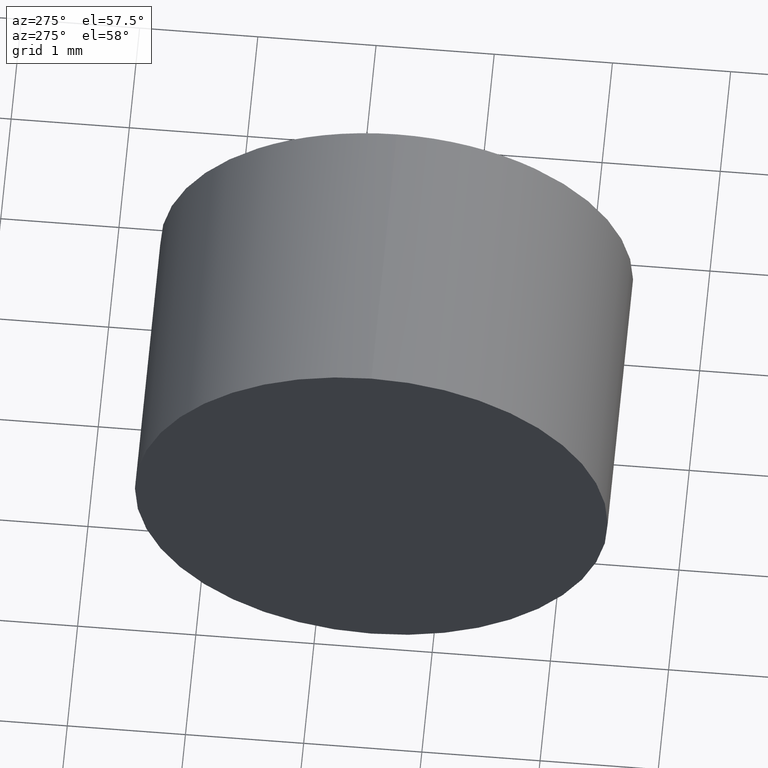
[diagram: clean part render]
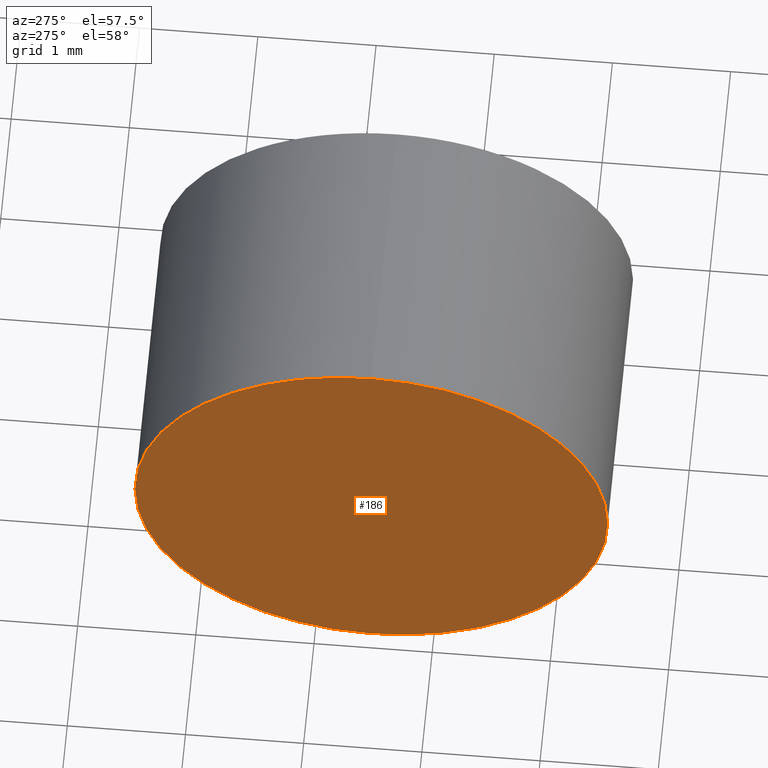
[diagram: same view with one face highlighted and labeled with its STEP entity id]
A machine part, auxiliary view. The second image highlights one B-rep face of the part: STEP entity #186.
In plain terms, the highlighted planar face has unit normal (1, 0, 0).
Its self-contained STEP definition (entity closure, byte-faithful):
#6 = PLANE ( 'NONE',  #143 ) ;
#8 = ORIENTED_EDGE ( 'NONE', *, *, #17, .T. ) ;
#17 = EDGE_CURVE ( 'NONE', #52, #92, #106, .T. ) ;
#21 = DIRECTION ( 'NONE',  ( -1.000000000000000000, -0.0000000000000000000, -0.0000000000000000000 ) ) ;
#36 = CARTESIAN_POINT ( 'NONE',  ( 11.08286323056900400, 6.522260287298739600, -2.000000000000000900 ) ) ;
#40 = AXIS2_PLACEMENT_3D ( 'NONE', #152, #151, #168 ) ;
#45 = CARTESIAN_POINT ( 'NONE',  ( 11.08286323056900400, 6.522260287298739600, 2.000000000000000900 ) ) ;
#50 = DIRECTION ( 'NONE',  ( 1.000000000000000000, 0.0000000000000000000, 0.0000000000000000000 ) ) ;
#52 = VERTEX_POINT ( 'NONE', #36 ) ;
#69 = CIRCLE ( 'NONE', #100, 2.000000000000000900 ) ;
#79 = CARTESIAN_POINT ( 'NONE',  ( 11.08286323056900400, 6.522260287298739600, 0.0000000000000000000 ) ) ;
#92 = VERTEX_POINT ( 'NONE', #45 ) ;
#100 = AXIS2_PLACEMENT_3D ( 'NONE', #79, #21, #181 ) ;
#101 = FACE_OUTER_BOUND ( 'NONE', #165, .T. ) ;
#105 = DIRECTION ( 'NONE',  ( 0.0000000000000000000, 0.0000000000000000000, -1.000000000000000000 ) ) ;
#106 = CIRCLE ( 'NONE', #40, 2.000000000000000900 ) ;
#119 = CARTESIAN_POINT ( 'NONE',  ( 11.08286323056900400, 6.522260287298739600, 0.0000000000000000000 ) ) ;
#133 = ORIENTED_EDGE ( 'NONE', *, *, #177, .T. ) ;
#143 = AXIS2_PLACEMENT_3D ( 'NONE', #119, #50, #105 ) ;
#151 = DIRECTION ( 'NONE',  ( -1.000000000000000000, -0.0000000000000000000, -0.0000000000000000000 ) ) ;
#152 = CARTESIAN_POINT ( 'NONE',  ( 11.08286323056900400, 6.522260287298739600, 0.0000000000000000000 ) ) ;
#165 = EDGE_LOOP ( 'NONE', ( #133, #8 ) ) ;
#168 = DIRECTION ( 'NONE',  ( 0.0000000000000000000, 0.0000000000000000000, 1.000000000000000000 ) ) ;
#177 = EDGE_CURVE ( 'NONE', #92, #52, #69, .T. ) ;
#181 = DIRECTION ( 'NONE',  ( 0.0000000000000000000, 0.0000000000000000000, 1.000000000000000000 ) ) ;
#186 = ADVANCED_FACE ( 'NONE', ( #101 ), #6, .F. ) ;